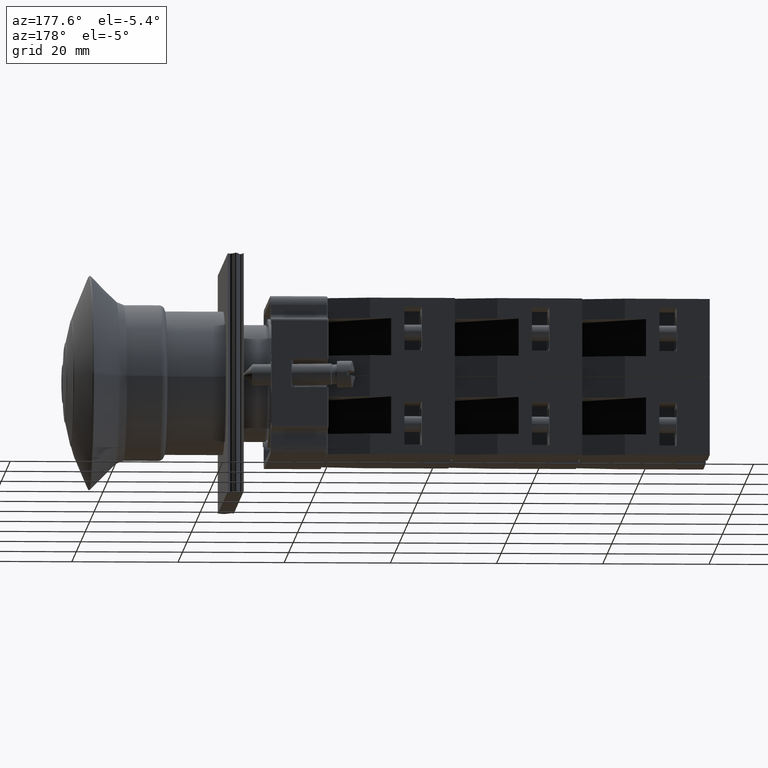
[diagram: clean part render]
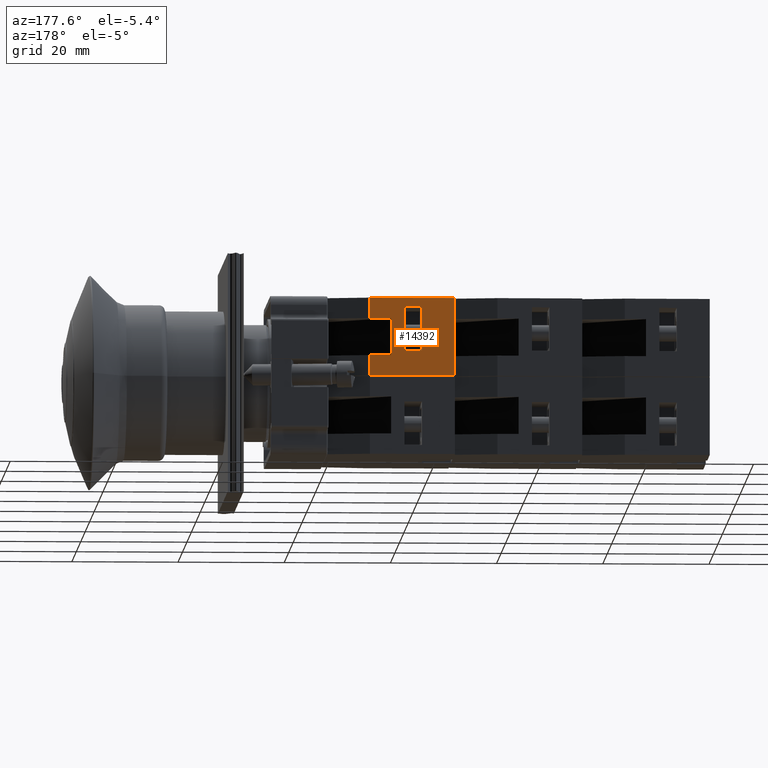
[diagram: same view with one face highlighted and labeled with its STEP entity id]
A machine part, auxiliary view. The second image highlights one B-rep face of the part: STEP entity #14392.
In plain terms, the highlighted planar face has unit normal (-0, 1, 0).
Its self-contained STEP definition (entity closure, byte-faithful):
#12853=CARTESIAN_POINT('',(-15.936741828918466,7.797073323279626,10.850000000000000));
#12854=VERTEX_POINT('',#12853);
#12869=CARTESIAN_POINT('',(-15.936741828918466,11.797073323279626,10.850000000000000));
#12870=VERTEX_POINT('',#12869);
#12877=CARTESIAN_POINT('',(-15.936741828918466,7.797073323279626,10.850000000000000));
#12878=DIRECTION('',(0.0,1.0,0.0));
#12879=VECTOR('',#12878,4.0);
#12880=LINE('',#12877,#12879);
#12881=EDGE_CURVE('',#12854,#12870,#12880,.T.);
#12891=CARTESIAN_POINT('',(-15.936741828918466,11.797073323279626,3.850000000000001));
#12892=VERTEX_POINT('',#12891);
#12901=CARTESIAN_POINT('',(-15.936741828918466,11.797073323279626,10.850000000000000));
#12902=DIRECTION('',(0.0,0.0,-1.0));
#12903=VECTOR('',#12902,6.999999999999999);
#12904=LINE('',#12901,#12903);
#12905=EDGE_CURVE('',#12870,#12892,#12904,.T.);
#12922=CARTESIAN_POINT('',(-15.936741828918466,7.797073323279631,3.850000000000000));
#12923=VERTEX_POINT('',#12922);
#12932=CARTESIAN_POINT('',(-15.936741828918466,11.797073323279626,3.850000000000001));
#12933=DIRECTION('',(0.0,-1.0,0.0));
#12934=VECTOR('',#12933,3.999999999999996);
#12935=LINE('',#12932,#12934);
#12936=EDGE_CURVE('',#12892,#12923,#12935,.T.);
#13072=CARTESIAN_POINT('',(-15.936741828918466,7.797073323279626,14.699999999999999));
#13073=VERTEX_POINT('',#13072);
#13074=CARTESIAN_POINT('',(-15.936741828918466,7.797073323279626,10.850000000000000));
#13075=DIRECTION('',(0.0,0.0,1.0));
#13076=VECTOR('',#13075,3.850000000000000);
#13077=LINE('',#13074,#13076);
#13078=EDGE_CURVE('',#12854,#13073,#13077,.T.);
#13500=CARTESIAN_POINT('',(-15.936741828918466,17.597073323279638,4.800000000000001));
#13501=VERTEX_POINT('',#13500);
#13508=CARTESIAN_POINT('',(-15.936741828918466,17.597073323279638,13.0));
#13509=VERTEX_POINT('',#13508);
#13510=CARTESIAN_POINT('',(-15.936741828918466,17.597073323279638,13.0));
#13511=DIRECTION('',(0.0,0.0,-1.0));
#13512=VECTOR('',#13511,8.199999999999999);
#13513=LINE('',#13510,#13512);
#13514=EDGE_CURVE('',#13509,#13501,#13513,.T.);
#13591=CARTESIAN_POINT('',(-15.936741828918475,14.297073323279639,13.0));
#13592=VERTEX_POINT('',#13591);
#13593=CARTESIAN_POINT('',(-15.936741828918475,14.297073323279639,13.0));
#13594=DIRECTION('',(0.0,1.0,0.0));
#13595=VECTOR('',#13594,3.299999999999999);
#13596=LINE('',#13593,#13595);
#13597=EDGE_CURVE('',#13592,#13509,#13596,.T.);
#13809=CARTESIAN_POINT('',(-15.936741828918475,14.297073323279637,4.800000000000002));
#13810=VERTEX_POINT('',#13809);
#13817=CARTESIAN_POINT('',(-15.936741828918466,17.597073323279638,4.800000000000001));
#13818=DIRECTION('',(0.0,-1.0,0.0));
#13819=VECTOR('',#13818,3.300000000000001);
#13820=LINE('',#13817,#13819);
#13821=EDGE_CURVE('',#13501,#13810,#13820,.T.);
#14066=CARTESIAN_POINT('',(-15.936741828918475,14.297073323279637,4.800000000000002));
#14067=DIRECTION('',(0.0,0.0,1.0));
#14068=VECTOR('',#14067,8.199999999999999);
#14069=LINE('',#14066,#14068);
#14070=EDGE_CURVE('',#13810,#13592,#14069,.T.);
#14304=CARTESIAN_POINT('',(-15.936741828918466,23.797073323279626,14.699999999999999));
#14305=VERTEX_POINT('',#14304);
#14312=CARTESIAN_POINT('',(-15.936741828918466,23.797073323279626,0.0));
#14313=VERTEX_POINT('',#14312);
#14314=CARTESIAN_POINT('',(-15.936741828918466,23.797073323279626,0.0));
#14315=DIRECTION('',(0.0,0.0,1.0));
#14316=VECTOR('',#14315,14.699999999999999);
#14317=LINE('',#14314,#14316);
#14318=EDGE_CURVE('',#14313,#14305,#14317,.T.);
#14354=CARTESIAN_POINT('',(-15.936741828918466,23.797073323279626,0.0));
#14355=DIRECTION('',(1.0,0.0,0.0));
#14356=DIRECTION('',(0.0,0.0,-1.0));
#14357=AXIS2_PLACEMENT_3D('',#14354,#14355,#14356);
#14358=PLANE('',#14357);
#14359=ORIENTED_EDGE('',*,*,#12936,.T.);
#14360=CARTESIAN_POINT('',(-15.936741828918466,7.797073323279626,0.0));
#14361=VERTEX_POINT('',#14360);
#14362=CARTESIAN_POINT('',(-15.936741828918466,7.797073323279626,0.0));
#14363=DIRECTION('',(0.0,0.0,1.0));
#14364=VECTOR('',#14363,3.850000000000000);
#14365=LINE('',#14362,#14364);
#14366=EDGE_CURVE('',#14361,#12923,#14365,.T.);
#14367=ORIENTED_EDGE('',*,*,#14366,.F.);
#14368=CARTESIAN_POINT('',(-15.936741828918466,23.797073323279626,0.0));
#14369=DIRECTION('',(0.0,-1.0,0.0));
#14370=VECTOR('',#14369,16.0);
#14371=LINE('',#14368,#14370);
#14372=EDGE_CURVE('',#14313,#14361,#14371,.T.);
#14373=ORIENTED_EDGE('',*,*,#14372,.F.);
#14374=ORIENTED_EDGE('',*,*,#14318,.T.);
#14375=CARTESIAN_POINT('',(-15.936741828918466,23.797073323279626,14.699999999999999));
#14376=DIRECTION('',(0.0,-1.0,0.0));
#14377=VECTOR('',#14376,16.0);
#14378=LINE('',#14375,#14377);
#14379=EDGE_CURVE('',#14305,#13073,#14378,.T.);
#14380=ORIENTED_EDGE('',*,*,#14379,.T.);
#14381=ORIENTED_EDGE('',*,*,#13078,.F.);
#14382=ORIENTED_EDGE('',*,*,#12881,.T.);
#14383=ORIENTED_EDGE('',*,*,#12905,.T.);
#14384=EDGE_LOOP('',(#14359,#14367,#14373,#14374,#14380,#14381,#14382,#14383));
#14385=FACE_OUTER_BOUND('',#14384,.T.);
#14386=ORIENTED_EDGE('',*,*,#13821,.T.);
#14387=ORIENTED_EDGE('',*,*,#14070,.T.);
#14388=ORIENTED_EDGE('',*,*,#13597,.T.);
#14389=ORIENTED_EDGE('',*,*,#13514,.T.);
#14390=EDGE_LOOP('',(#14386,#14387,#14388,#14389));
#14391=FACE_BOUND('',#14390,.T.);
#14392=ADVANCED_FACE('',(#14385,#14391),#14358,.T.);